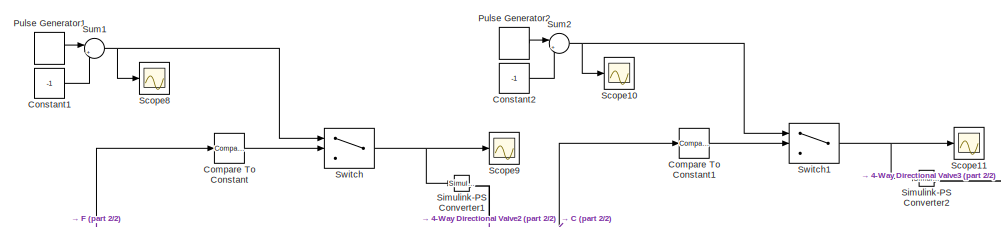
[diagram: root canvas - part 1/2, top center region]
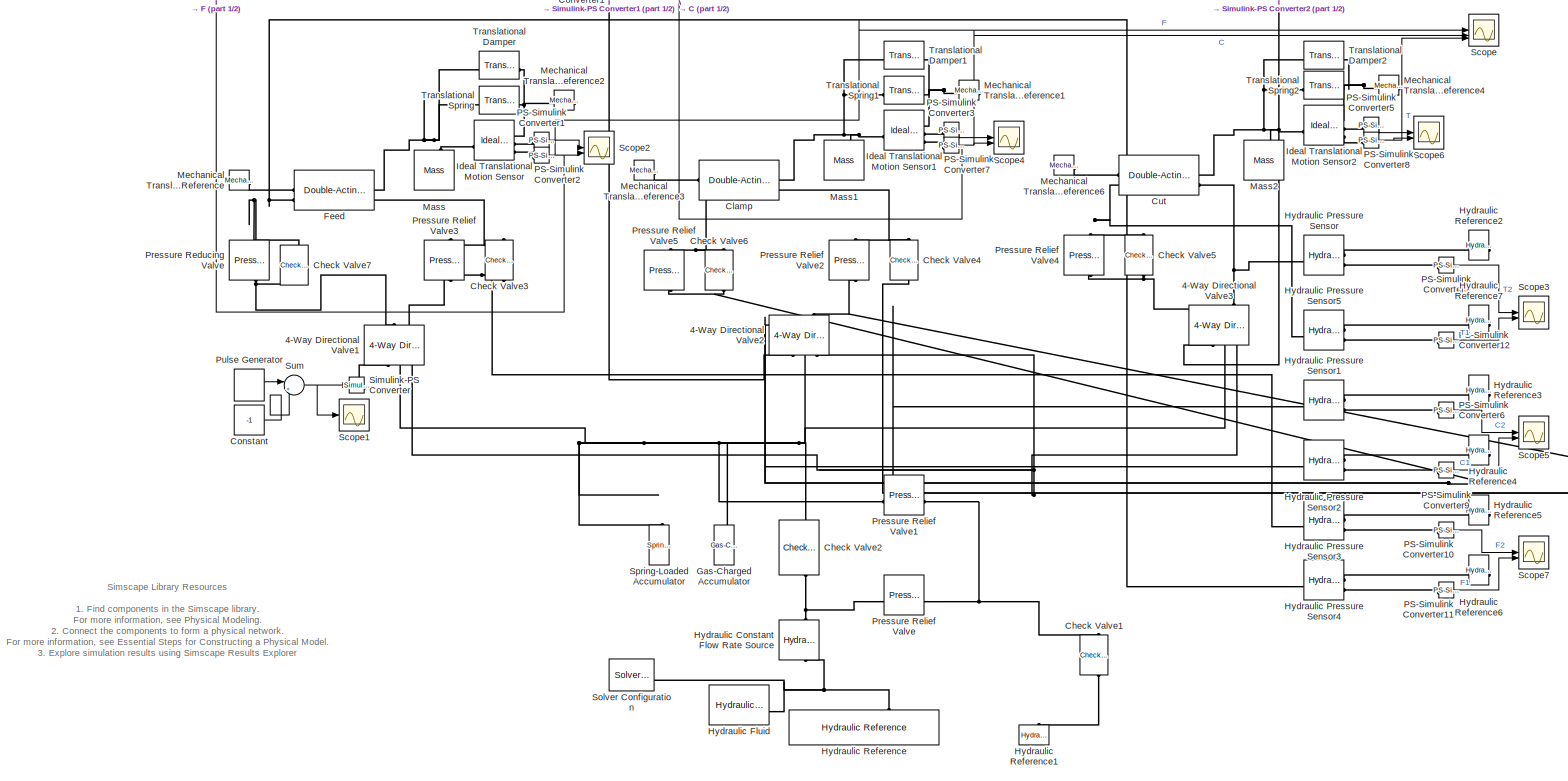
[diagram: root canvas - part 2/2, most of the canvas]
MODEL slx_5e64dc3f774f
KIND model
CONFIG AbsTol = 1e-3
CONFIG EnableMultiTasking = off
CONFIG FixedStep = auto
CONFIG MaxStep = auto
CONFIG MinStep = auto
CONFIG RelTol = 1e-3
CONFIG SampleTimeConstraint = Unconstrained
CONFIG SolverName = VariableStepAuto
CONFIG StartTime = 0.0
CONFIG StopTime = 120
BLOCK [Reference] 4-Way Directional Valve1  REF=sh_lib/Valves/Directional Valves/4-Way Directional
Valve
  NameLocation = right
  SourceBlock = sh_lib/Valves/Directional Valves/4-Way Directional\nValve
  SourceType = 4-Way Directional\nValve
BLOCK [Reference] 4-Way Directional Valve2  REF=sh_lib/Valves/Directional Valves/4-Way Directional
Valve
  NameLocation = right
  SourceBlock = sh_lib/Valves/Directional Valves/4-Way Directional\nValve
  SourceType = 4-Way Directional\nValve
BLOCK [Reference] 4-Way Directional Valve3  REF=sh_lib/Valves/Directional Valves/4-Way Directional
Valve
  NameLocation = right
  SourceBlock = sh_lib/Valves/Directional Valves/4-Way Directional\nValve
  SourceType = 4-Way Directional\nValve
BLOCK [Reference] Check Valve1  REF=sh_lib/Valves/Directional Valves/Check Valve
  NameLocation = left
  SourceBlock = sh_lib/Valves/Directional Valves/Check Valve
  SourceType = Check Valve
BLOCK [Reference] Check Valve2  REF=sh_lib/Valves/Directional Valves/Check Valve
  NameLocation = right
  SourceBlock = sh_lib/Valves/Directional Valves/Check Valve
  SourceType = Check Valve
BLOCK [Reference] Check Valve3  REF=sh_lib/Valves/Directional Valves/Check Valve
  NameLocation = left
  SourceBlock = sh_lib/Valves/Directional Valves/Check Valve
  SourceType = Check Valve
BLOCK [Reference] Check Valve4  REF=sh_lib/Valves/Directional Valves/Check Valve
  NameLocation = left
  SourceBlock = sh_lib/Valves/Directional Valves/Check Valve
  SourceType = Check Valve
BLOCK [Reference] Check Valve5  REF=sh_lib/Valves/Directional Valves/Check Valve
  NameLocation = left
  SourceBlock = sh_lib/Valves/Directional Valves/Check Valve
  SourceType = Check Valve
BLOCK [Reference] Check Valve6  REF=sh_lib/Valves/Directional Valves/Check Valve
  NameLocation = left
  SourceBlock = sh_lib/Valves/Directional Valves/Check Valve
  SourceType = Check Valve
BLOCK [Reference] Check Valve7  REF=sh_lib/Valves/Directional Valves/Check Valve
  NameLocation = left
  SourceBlock = sh_lib/Valves/Directional Valves/Check Valve
  SourceType = Check Valve
BLOCK [Reference] Clamp  REF=sh_lib/Hydraulic Cylinders/Double-Acting
Hydraulic Cylinder
  SourceBlock = sh_lib/Hydraulic Cylinders/Double-Acting\nHydraulic Cylinder
  SourceType = Double-Acting\nHydraulic Cylinder
BLOCK [Reference] Compare To Constant  REF=simulink/Logic and Bit
Operations/Compare
To Constant
  SourceBlock = simulink/Logic and Bit\nOperations/Compare\nTo Constant
  SourceType = Compare To Constant
BLOCK [Reference] Compare To Constant1  REF=simulink/Logic and Bit
Operations/Compare
To Constant
  SourceBlock = simulink/Logic and Bit\nOperations/Compare\nTo Constant
  SourceType = Compare To Constant
BLOCK [Constant] Constant
  Value = -1
BLOCK [Constant] Constant1
  Value = -1
BLOCK [Constant] Constant2
  Value = -1
BLOCK [Reference] Cut  REF=sh_lib/Hydraulic Cylinders/Double-Acting
Hydraulic Cylinder
  SourceBlock = sh_lib/Hydraulic Cylinders/Double-Acting\nHydraulic Cylinder
  SourceType = Double-Acting\nHydraulic Cylinder
BLOCK [Reference] Feed  REF=sh_lib/Hydraulic Cylinders/Double-Acting
Hydraulic Cylinder
  SourceBlock = sh_lib/Hydraulic Cylinders/Double-Acting\nHydraulic Cylinder
  SourceType = Double-Acting\nHydraulic Cylinder
BLOCK [Reference] Gas-Charged Accumulator  REF=sh_lib/Accumulators/Gas-Charged
Accumulator
  Commented = on
  NameLocation = left
  SourceBlock = sh_lib/Accumulators/Gas-Charged\nAccumulator
  SourceType = Gas-Charged\nAccumulator
BLOCK [Reference] Hydraulic Constant Flow Rate Source  REF=fl_lib/Hydraulic/Hydraulic Sources/Hydraulic Constant
Flow Rate Source
  NameLocation = right
  SourceBlock = fl_lib/Hydraulic/Hydraulic Sources/Hydraulic Constant\nFlow Rate Source
  SourceType = Hydraulic Constant\nFlow Rate Source
BLOCK [Reference] Hydraulic Fluid  REF=sh_lib/Hydraulic Utilities/Hydraulic Fluid
  SourceBlock = sh_lib/Hydraulic Utilities/Hydraulic Fluid
  SourceType = Hydraulic Fluid
BLOCK [Reference] Hydraulic Pressure Sensor  REF=fl_lib/Hydraulic/Hydraulic Sensors/Hydraulic Pressure
Sensor
  SourceBlock = fl_lib/Hydraulic/Hydraulic Sensors/Hydraulic Pressure\nSensor
  SourceType = Hydraulic Pressure\nSensor
BLOCK [Reference] Hydraulic Pressure Sensor1  REF=fl_lib/Hydraulic/Hydraulic Sensors/Hydraulic Pressure
Sensor
  SourceBlock = fl_lib/Hydraulic/Hydraulic Sensors/Hydraulic Pressure\nSensor
  SourceType = Hydraulic Pressure\nSensor
BLOCK [Reference] Hydraulic Pressure Sensor2  REF=fl_lib/Hydraulic/Hydraulic Sensors/Hydraulic Pressure
Sensor
  SourceBlock = fl_lib/Hydraulic/Hydraulic Sensors/Hydraulic Pressure\nSensor
  SourceType = Hydraulic Pressure\nSensor
BLOCK [Reference] Hydraulic Pressure Sensor3  REF=fl_lib/Hydraulic/Hydraulic Sensors/Hydraulic Pressure
Sensor
  SourceBlock = fl_lib/Hydraulic/Hydraulic Sensors/Hydraulic Pressure\nSensor
  SourceType = Hydraulic Pressure\nSensor
BLOCK [Reference] Hydraulic Pressure Sensor4  REF=fl_lib/Hydraulic/Hydraulic Sensors/Hydraulic Pressure
Sensor
  SourceBlock = fl_lib/Hydraulic/Hydraulic Sensors/Hydraulic Pressure\nSensor
  SourceType = Hydraulic Pressure\nSensor
BLOCK [Reference] Hydraulic Pressure Sensor5  REF=fl_lib/Hydraulic/Hydraulic Sensors/Hydraulic Pressure
Sensor
  SourceBlock = fl_lib/Hydraulic/Hydraulic Sensors/Hydraulic Pressure\nSensor
  SourceType = Hydraulic Pressure\nSensor
BLOCK [Reference] Hydraulic Reference  REF=fl_lib/Hydraulic/Hydraulic Elements/Hydraulic Reference
  NameLocation = right
  SourceBlock = fl_lib/Hydraulic/Hydraulic Elements/Hydraulic Reference
  SourceType = Hydraulic Reference
BLOCK [Reference] Hydraulic Reference1  REF=fl_lib/Hydraulic/Hydraulic Elements/Hydraulic Reference
  NameLocation = right
  SourceBlock = fl_lib/Hydraulic/Hydraulic Elements/Hydraulic Reference
  SourceType = Hydraulic Reference
BLOCK [Reference] Hydraulic Reference2  REF=fl_lib/Hydraulic/Hydraulic Elements/Hydraulic Reference
  NameLocation = top
  SourceBlock = fl_lib/Hydraulic/Hydraulic Elements/Hydraulic Reference
  SourceType = Hydraulic Reference
BLOCK [Reference] Hydraulic Reference3  REF=fl_lib/Hydraulic/Hydraulic Elements/Hydraulic Reference
  NameLocation = top
  SourceBlock = fl_lib/Hydraulic/Hydraulic Elements/Hydraulic Reference
  SourceType = Hydraulic Reference
BLOCK [Reference] Hydraulic Reference4  REF=fl_lib/Hydraulic/Hydraulic Elements/Hydraulic Reference
  NameLocation = top
  SourceBlock = fl_lib/Hydraulic/Hydraulic Elements/Hydraulic Reference
  SourceType = Hydraulic Reference
BLOCK [Reference] Hydraulic Reference5  REF=fl_lib/Hydraulic/Hydraulic Elements/Hydraulic Reference
  NameLocation = top
  SourceBlock = fl_lib/Hydraulic/Hydraulic Elements/Hydraulic Reference
  SourceType = Hydraulic Reference
BLOCK [Reference] Hydraulic Reference6  REF=fl_lib/Hydraulic/Hydraulic Elements/Hydraulic Reference
  NameLocation = top
  SourceBlock = fl_lib/Hydraulic/Hydraulic Elements/Hydraulic Reference
  SourceType = Hydraulic Reference
BLOCK [Reference] Hydraulic Reference7  REF=fl_lib/Hydraulic/Hydraulic Elements/Hydraulic Reference
  NameLocation = top
  SourceBlock = fl_lib/Hydraulic/Hydraulic Elements/Hydraulic Reference
  SourceType = Hydraulic Reference
BLOCK [Reference] Ideal Translational Motion Sensor  REF=fl_lib/Mechanical/Mechanical Sensors/Ideal Translational
Motion Sensor
  SourceBlock = fl_lib/Mechanical/Mechanical Sensors/Ideal Translational\nMotion Sensor
  SourceType = Ideal Translational\nMotion Sensor
BLOCK [Reference] Ideal Translational Motion Sensor1  REF=fl_lib/Mechanical/Mechanical Sensors/Ideal Translational
Motion Sensor
  SourceBlock = fl_lib/Mechanical/Mechanical Sensors/Ideal Translational\nMotion Sensor
  SourceType = Ideal Translational\nMotion Sensor
BLOCK [Reference] Ideal Translational Motion Sensor2  REF=fl_lib/Mechanical/Mechanical Sensors/Ideal Translational
Motion Sensor
  SourceBlock = fl_lib/Mechanical/Mechanical Sensors/Ideal Translational\nMotion Sensor
  SourceType = Ideal Translational\nMotion Sensor
BLOCK [Reference] Mass  REF=fl_lib/Mechanical/Translational
Elements/Mass
  NameLocation = right
  SourceBlock = fl_lib/Mechanical/Translational\nElements/Mass
  SourceType = Mass
BLOCK [Reference] Mass1  REF=fl_lib/Mechanical/Translational
Elements/Mass
  NameLocation = right
  SourceBlock = fl_lib/Mechanical/Translational\nElements/Mass
  SourceType = Mass
BLOCK [Reference] Mass2  REF=fl_lib/Mechanical/Translational
Elements/Mass
  NameLocation = right
  SourceBlock = fl_lib/Mechanical/Translational\nElements/Mass
  SourceType = Mass
BLOCK [Reference] Mechanical Translational Reference  REF=fl_lib/Mechanical/Translational
Elements/Mechanical
Translational
Reference
  SourceBlock = fl_lib/Mechanical/Translational\nElements/Mechanical\nTranslational\nReference
  SourceType = Mechanical\nTranslational\nReference
BLOCK [Reference] Mechanical Translational Reference1  REF=fl_lib/Mechanical/Translational
Elements/Mechanical
Translational
Reference
  NameLocation = top
  SourceBlock = fl_lib/Mechanical/Translational\nElements/Mechanical\nTranslational\nReference
  SourceType = Mechanical\nTranslational\nReference
BLOCK [Reference] Mechanical Translational Reference2  REF=fl_lib/Mechanical/Translational
Elements/Mechanical
Translational
Reference
  NameLocation = top
  SourceBlock = fl_lib/Mechanical/Translational\nElements/Mechanical\nTranslational\nReference
  SourceType = Mechanical\nTranslational\nReference
BLOCK [Reference] Mechanical Translational Reference3  REF=fl_lib/Mechanical/Translational
Elements/Mechanical
Translational
Reference
  SourceBlock = fl_lib/Mechanical/Translational\nElements/Mechanical\nTranslational\nReference
  SourceType = Mechanical\nTranslational\nReference
BLOCK [Reference] Mechanical Translational Reference4  REF=fl_lib/Mechanical/Translational
Elements/Mechanical
Translational
Reference
  NameLocation = top
  SourceBlock = fl_lib/Mechanical/Translational\nElements/Mechanical\nTranslational\nReference
  SourceType = Mechanical\nTranslational\nReference
BLOCK [Reference] Mechanical Translational Reference6  REF=fl_lib/Mechanical/Translational
Elements/Mechanical
Translational
Reference
  SourceBlock = fl_lib/Mechanical/Translational\nElements/Mechanical\nTranslational\nReference
  SourceType = Mechanical\nTranslational\nReference
BLOCK [Reference] PS-Simulink Converter1  REF=nesl_utility/PS-Simulink
Converter
  SourceBlock = nesl_utility/PS-Simulink\nConverter
  SourceType = PS-Simulink\nConverter
BLOCK [Reference] PS-Simulink Converter10  REF=nesl_utility/PS-Simulink
Converter
  SourceBlock = nesl_utility/PS-Simulink\nConverter
  SourceType = PS-Simulink\nConverter
BLOCK [Reference] PS-Simulink Converter11  REF=nesl_utility/PS-Simulink
Converter
  SourceBlock = nesl_utility/PS-Simulink\nConverter
  SourceType = PS-Simulink\nConverter
BLOCK [Reference] PS-Simulink Converter12  REF=nesl_utility/PS-Simulink
Converter
  SourceBlock = nesl_utility/PS-Simulink\nConverter
  SourceType = PS-Simulink\nConverter
BLOCK [Reference] PS-Simulink Converter2  REF=nesl_utility/PS-Simulink
Converter
  SourceBlock = nesl_utility/PS-Simulink\nConverter
  SourceType = PS-Simulink\nConverter
BLOCK [Reference] PS-Simulink Converter3  REF=nesl_utility/PS-Simulink
Converter
  SourceBlock = nesl_utility/PS-Simulink\nConverter
  SourceType = PS-Simulink\nConverter
BLOCK [Reference] PS-Simulink Converter4  REF=nesl_utility/PS-Simulink
Converter
  SourceBlock = nesl_utility/PS-Simulink\nConverter
  SourceType = PS-Simulink\nConverter
BLOCK [Reference] PS-Simulink Converter5  REF=nesl_utility/PS-Simulink
Converter
  SourceBlock = nesl_utility/PS-Simulink\nConverter
  SourceType = PS-Simulink\nConverter
BLOCK [Reference] PS-Simulink Converter6  REF=nesl_utility/PS-Simulink
Converter
  SourceBlock = nesl_utility/PS-Simulink\nConverter
  SourceType = PS-Simulink\nConverter
BLOCK [Reference] PS-Simulink Converter7  REF=nesl_utility/PS-Simulink
Converter
  SourceBlock = nesl_utility/PS-Simulink\nConverter
  SourceType = PS-Simulink\nConverter
BLOCK [Reference] PS-Simulink Converter8  REF=nesl_utility/PS-Simulink
Converter
  SourceBlock = nesl_utility/PS-Simulink\nConverter
  SourceType = PS-Simulink\nConverter
BLOCK [Reference] PS-Simulink Converter9  REF=nesl_utility/PS-Simulink
Converter
  SourceBlock = nesl_utility/PS-Simulink\nConverter
  SourceType = PS-Simulink\nConverter
BLOCK [Reference] Pressure Reducing Valve  REF=sh_lib/Valves/Pressure Control
Valves/Pressure Reducing
Valve
  NameLocation = left
  SourceBlock = sh_lib/Valves/Pressure Control\nValves/Pressure Reducing\nValve
  SourceType = Pressure Reducing\nValve
BLOCK [Reference] Pressure Relief Valve  REF=sh_lib/Valves/Pressure Control
Valves/Pressure Relief
Valve
  NameLocation = top
  SourceBlock = sh_lib/Valves/Pressure Control\nValves/Pressure Relief\nValve
  SourceType = Pressure Relief\nValve
BLOCK [Reference] Pressure Relief Valve1  REF=sh_lib/Valves/Pressure Control
Valves/Pressure Relief
Valve
  NameLocation = top
  SourceBlock = sh_lib/Valves/Pressure Control\nValves/Pressure Relief\nValve
  SourceType = Pressure Relief\nValve
BLOCK [Reference] Pressure Relief Valve2  REF=sh_lib/Valves/Pressure Control
Valves/Pressure Relief
Valve
  NameLocation = left
  SourceBlock = sh_lib/Valves/Pressure Control\nValves/Pressure Relief\nValve
  SourceType = Pressure Relief\nValve
BLOCK [Reference] Pressure Relief Valve3  REF=sh_lib/Valves/Pressure Control
Valves/Pressure Relief
Valve
  NameLocation = left
  SourceBlock = sh_lib/Valves/Pressure Control\nValves/Pressure Relief\nValve
  SourceType = Pressure Relief\nValve
BLOCK [Reference] Pressure Relief Valve4  REF=sh_lib/Valves/Pressure Control
Valves/Pressure Relief
Valve
  NameLocation = left
  SourceBlock = sh_lib/Valves/Pressure Control\nValves/Pressure Relief\nValve
  SourceType = Pressure Relief\nValve
BLOCK [Reference] Pressure Relief Valve5  REF=sh_lib/Valves/Pressure Control
Valves/Pressure Relief
Valve
  NameLocation = left
  SourceBlock = sh_lib/Valves/Pressure Control\nValves/Pressure Relief\nValve
  SourceType = Pressure Relief\nValve
BLOCK [DiscretePulseGenerator] Pulse Generator
  Amplitude = 2
  Period = 15+30
  PhaseDelay = 1
  PulseType = Time based
  PulseWidth = 50
BLOCK [DiscretePulseGenerator] Pulse Generator1
  Amplitude = 2
  Period = 14+30
  PhaseDelay = 1
  PulseType = Time based
  PulseWidth = 50
BLOCK [DiscretePulseGenerator] Pulse Generator2
  Amplitude = 2
  Period = 12.5+30
  PhaseDelay = 1
  PulseType = Time based
  PulseWidth = 50
BLOCK [Scope] Scope
  Floating = off
  NumInputPorts = 3
  ScopeSpecificationString = Simulink.scopes.TimeScopeBlockCfg('CurrentConfiguration', extmgr.ConfigurationSet(extmgr.Configuration('Core','General UI',true),extmgr.Configuration('Core','Source UI',true),extmgr.Configuration('Sources','WiredSimulink',true,'DataLoggingVariableName','ScopeData1'),extmgr.Configuration('Visuals','Time Domain',true,'SerializedDisplays',{struct('MinYLimReal','-0.03266','MaxYLimReal','0.28176','YLab...<+1869ch>
BLOCK [Scope] Scope1
  Floating = off
  NumInputPorts = 1
  ScopeSpecificationString = Simulink.scopes.TimeScopeBlockCfg('CurrentConfiguration', extmgr.ConfigurationSet(extmgr.Configuration('Core','General UI',true),extmgr.Configuration('Core','Source UI',true),extmgr.Configuration('Sources','WiredSimulink',true,'DataLoggingVariableName','ScopeData1'),extmgr.Configuration('Visuals','Time Domain',true,'SerializedDisplays',{struct('MinYLimReal','-1.25','MaxYLimReal','1.25','YLabelReal...<+1433ch>
BLOCK [Scope] Scope10
  Floating = off
  NumInputPorts = 1
  ScopeSpecificationString = Simulink.scopes.TimeScopeBlockCfg('CurrentConfiguration', extmgr.ConfigurationSet(extmgr.Configuration('Core','General UI',true),extmgr.Configuration('Core','Source UI',true),extmgr.Configuration('Sources','WiredSimulink',true,'DataLoggingVariableName','ScopeData3'),extmgr.Configuration('Visuals','Time Domain',true,'SerializedDisplays',{struct('MinYLimReal','-1.25','MaxYLimReal','1.25','YLabelReal...<+1345ch>
BLOCK [Scope] Scope11
  Floating = off
  NumInputPorts = 1
  ScopeSpecificationString = Simulink.scopes.TimeScopeBlockCfg('CurrentConfiguration', extmgr.ConfigurationSet(extmgr.Configuration('Core','General UI',true),extmgr.Configuration('Core','Source UI',true),extmgr.Configuration('Sources','WiredSimulink',true,'DataLoggingVariableName','ScopeData4'),extmgr.Configuration('Visuals','Time Domain',true,'SerializedDisplays',{struct('MinYLimReal','-1.25','MaxYLimReal','1.25','YLabelReal...<+1348ch>
BLOCK [Scope] Scope2
  Floating = off
  NumInputPorts = 2
  ScopeSpecificationString = Simulink.scopes.TimeScopeBlockCfg('CurrentConfiguration', extmgr.ConfigurationSet(extmgr.Configuration('Core','General UI',true),extmgr.Configuration('Core','Source UI',true),extmgr.Configuration('Sources','WiredSimulink',true,'DataLoggingVariableName','ScopeData2'),extmgr.Configuration('Visuals','Time Domain',true,'SerializedDisplays',{struct('MinYLimReal','-0.36256','MaxYLimReal','0.26289','YLab...<+1761ch>
BLOCK [Scope] Scope3
  Floating = off
  NumInputPorts = 2
  ScopeSpecificationString = Simulink.scopes.TimeScopeBlockCfg('CurrentConfiguration', extmgr.ConfigurationSet(extmgr.Configuration('Core','General UI',true),extmgr.Configuration('Core','Source UI',true),extmgr.Configuration('Sources','WiredSimulink',true,'DataLoggingVariableName','ScopeData1'),extmgr.Configuration('Visuals','Time Domain',true,'SerializedDisplays',{struct('MinYLimReal','-208585.52863','MaxYLimReal','1136720.9...<+1856ch>
BLOCK [Scope] Scope4
  Floating = off
  NumInputPorts = 2
  ScopeSpecificationString = Simulink.scopes.TimeScopeBlockCfg('CurrentConfiguration', extmgr.ConfigurationSet(extmgr.Configuration('Core','General UI',true),extmgr.Configuration('Core','Source UI',true),extmgr.Configuration('Sources','WiredSimulink',true,'DataLoggingVariableName','ScopeData3'),extmgr.Configuration('Visuals','Time Domain',true,'SerializedDisplays',{struct('MinYLimReal','-0.37862','MaxYLimReal','0.3992','YLabe...<+1770ch>
BLOCK [Scope] Scope5
  Floating = off
  NumInputPorts = 2
  ScopeSpecificationString = Simulink.scopes.TimeScopeBlockCfg('CurrentConfiguration', extmgr.ConfigurationSet(extmgr.Configuration('Core','General UI',true),extmgr.Configuration('Core','Source UI',true),extmgr.Configuration('Sources','WiredSimulink',true,'DataLoggingVariableName','ScopeData2'),extmgr.Configuration('Visuals','Time Domain',true,'SerializedDisplays',{struct('MinYLimReal','-125153.93816','MaxYLimReal','1126385.4...<+1777ch>
BLOCK [Scope] Scope6
  Floating = off
  NumInputPorts = 2
  ScopeSpecificationString = Simulink.scopes.TimeScopeBlockCfg('CurrentConfiguration', extmgr.ConfigurationSet(extmgr.Configuration('Core','General UI',true),extmgr.Configuration('Core','Source UI',true),extmgr.Configuration('Sources','WiredSimulink',true,'DataLoggingVariableName','ScopeData5'),extmgr.Configuration('Visuals','Time Domain',true,'SerializedDisplays',{struct('MinYLimReal','-0.57533','MaxYLimReal','0.38044','YLab...<+1834ch>
BLOCK [Scope] Scope7
  Floating = off
  NumInputPorts = 2
  ScopeSpecificationString = Simulink.scopes.TimeScopeBlockCfg('CurrentConfiguration', extmgr.ConfigurationSet(extmgr.Configuration('Core','General UI',true),extmgr.Configuration('Core','Source UI',true),extmgr.Configuration('Sources','WiredSimulink',true,'DataLoggingVariableName','ScopeData3'),extmgr.Configuration('Visuals','Time Domain',true,'SerializedDisplays',{struct('MinYLimReal','-125147.98911','MaxYLimReal','1126331.9...<+1855ch>
BLOCK [Scope] Scope8
  Floating = off
  NumInputPorts = 1
  ScopeSpecificationString = Simulink.scopes.TimeScopeBlockCfg('CurrentConfiguration', extmgr.ConfigurationSet(extmgr.Configuration('Core','General UI',true),extmgr.Configuration('Core','Source UI',true),extmgr.Configuration('Sources','WiredSimulink',true,'DataLoggingVariableName','ScopeData1'),extmgr.Configuration('Visuals','Time Domain',true,'SerializedDisplays',{struct('MinYLimReal','-1.25','MaxYLimReal','1.25','YLabelReal...<+1345ch>
BLOCK [Scope] Scope9
  Floating = off
  NumInputPorts = 1
  ScopeSpecificationString = Simulink.scopes.TimeScopeBlockCfg('CurrentConfiguration', extmgr.ConfigurationSet(extmgr.Configuration('Core','General UI',true),extmgr.Configuration('Core','Source UI',true),extmgr.Configuration('Sources','WiredSimulink',true,'DataLoggingVariableName','ScopeData2'),extmgr.Configuration('Visuals','Time Domain',true,'SerializedDisplays',{struct('MinYLimReal','-1.25','MaxYLimReal','1.25','YLabelReal...<+1347ch>
BLOCK [Reference] Simulink-PS Converter  REF=nesl_utility/Simulink-PS
Converter
  SourceBlock = nesl_utility/Simulink-PS\nConverter
  SourceType = Simulink-PS\nConverter
BLOCK [Reference] Simulink-PS Converter1  REF=nesl_utility/Simulink-PS
Converter
  SourceBlock = nesl_utility/Simulink-PS\nConverter
  SourceType = Simulink-PS\nConverter
BLOCK [Reference] Simulink-PS Converter2  REF=nesl_utility/Simulink-PS
Converter
  SourceBlock = nesl_utility/Simulink-PS\nConverter
  SourceType = Simulink-PS\nConverter
BLOCK [Reference] Solver Configuration  REF=nesl_utility/Solver
Configuration
  SourceBlock = nesl_utility/Solver\nConfiguration
  SourceType = Solver\nConfiguration
BLOCK [Reference] Spring-Loaded Accumulator  REF=sh_lib/Accumulators/Spring-Loaded
Accumulator
  NameLocation = left
  SourceBlock = sh_lib/Accumulators/Spring-Loaded\nAccumulator
  SourceType = Spring-Loaded\nAccumulator
BLOCK [Sum] Sum
  Inputs = |++
BLOCK [Sum] Sum1
  Inputs = |++
BLOCK [Sum] Sum2
  Inputs = |++
BLOCK [Switch] Switch
  Criteria = u2 > Threshold
  InputSameDT = off
  SaturateOnIntegerOverflow = off
  Threshold = 0.5
BLOCK [Switch] Switch1
  Criteria = u2 > Threshold
  InputSameDT = off
  SaturateOnIntegerOverflow = off
  Threshold = 0.5
BLOCK [Reference] Translational Damper  REF=sdl_lib/Couplings & Drives/Springs & Dampers/Translational Damper
  SourceBlock = sdl_lib/Couplings & Drives/Springs & Dampers/Translational Damper
  SourceType = Translational Damper
BLOCK [Reference] Translational Damper1  REF=sdl_lib/Couplings & Drives/Springs & Dampers/Translational Damper
  SourceBlock = sdl_lib/Couplings & Drives/Springs & Dampers/Translational Damper
  SourceType = Translational Damper
BLOCK [Reference] Translational Damper2  REF=sdl_lib/Couplings & Drives/Springs & Dampers/Translational Damper
  SourceBlock = sdl_lib/Couplings & Drives/Springs & Dampers/Translational Damper
  SourceType = Translational Damper
BLOCK [Reference] Translational Spring  REF=fl_lib/Mechanical/Translational
Elements/Translational Spring
  Commented = on
  SourceBlock = fl_lib/Mechanical/Translational\nElements/Translational Spring
  SourceType = Translational Spring
BLOCK [Reference] Translational Spring1  REF=fl_lib/Mechanical/Translational
Elements/Translational Spring
  Commented = on
  SourceBlock = fl_lib/Mechanical/Translational\nElements/Translational Spring
  SourceType = Translational Spring
BLOCK [Reference] Translational Spring2  REF=fl_lib/Mechanical/Translational
Elements/Translational Spring
  Commented = on
  SourceBlock = fl_lib/Mechanical/Translational\nElements/Translational Spring
  SourceType = Translational Spring
ANNOTATION (root): 1. Find components in the Simscape library . For more information, see Physical Modeling . 2. Connect the components to form a physical network. For more information, see Essential Steps for Constructing a Physical Model . 3. Explore simulation results using Simscape Results Explorer
ANNOTATION (root): Simscape Library Resources
LINE Compare To Constant1:1 -> Switch1:2
LINE Compare To Constant:1 -> Switch:2
LINE Constant1:1 -> Sum1:2
LINE Constant2:1 -> Sum2:2
LINE Constant:1 -> Sum:2
LINE PS-Simulink Converter10:1 -> Scope7:1
LINE PS-Simulink Converter11:1 -> Scope7:2
LINE PS-Simulink Converter12:1 -> Scope3:2
LINE PS-Simulink Converter1:1 -> Scope2:1
NET PS-Simulink Converter2:1 -> Compare To Constant:1, Scope2:2, Scope:1
LINE PS-Simulink Converter3:1 -> Scope4:1
LINE PS-Simulink Converter4:1 -> Scope3:1
LINE PS-Simulink Converter5:1 -> Scope6:1
LINE PS-Simulink Converter6:1 -> Scope5:1
NET PS-Simulink Converter7:1 -> Compare To Constant1:1, Scope4:2, Scope:2
NET PS-Simulink Converter8:1 -> Scope6:2, Scope:3
LINE PS-Simulink Converter9:1 -> Scope5:2
LINE Pulse Generator1:1 -> Sum1:1
LINE Pulse Generator2:1 -> Sum2:1
LINE Pulse Generator:1 -> Sum:1
NET Sum1:1 -> Scope8:1, Switch:1
NET Sum2:1 -> Scope10:1, Switch1:1
NET Sum:1 -> Scope1:1, Simulink-PS Converter:1
NET Switch1:1 -> Scope11:1, Simulink-PS Converter2:1
NET Switch:1 -> Scope9:1, Simulink-PS Converter1:1
PNET net1: 4-Way Directional Valve1:LConn1 -- Check Valve7:RConn1 -- Pressure Reducing Valve:LConn1
PNET net2: 4-Way Directional Valve1:LConn2 -- Check Valve3:RConn1 -- Hydraulic Pressure Sensor3:LConn1 -- Pressure Relief Valve3:LConn1
PLINE 4-Way Directional Valve1:RConn1 -- Simulink-PS Converter:RConn1
PNET net3: 4-Way Directional Valve1:RConn2 -- 4-Way Directional Valve2:RConn2 -- 4-Way Directional Valve3:RConn2 -- Check Valve2:RConn1 -- Gas-Charged Accumulator:RConn1 -- Pressure Relief Valve1:LConn1 -- Spring-Loaded Accumulator:RConn1
PNET net4: 4-Way Directional Valve1:RConn3 -- 4-Way Directional Valve2:RConn3 -- 4-Way Directional Valve3:RConn3 -- Check Valve1:LConn1 -- Pressure Relief Valve1:RConn1 -- Pressure Relief Valve:RConn1
PNET net5: 4-Way Directional Valve2:LConn1 -- Check Valve6:RConn1 -- Hydraulic Pressure Sensor2:LConn1 -- Pressure Relief Valve5:LConn1
PNET net6: 4-Way Directional Valve2:LConn2 -- Check Valve4:RConn1 -- Hydraulic Pressure Sensor1:LConn1 -- Pressure Relief Valve2:LConn1
PLINE 4-Way Directional Valve2:RConn1 -- Simulink-PS Converter1:RConn1
PNET net7: 4-Way Directional Valve3:LConn1 -- Check Valve5:RConn1 -- Pressure Relief Valve4:LConn1
PNET net8: 4-Way Directional Valve3:LConn2 -- Cut:RConn2 -- Hydraulic Pressure Sensor:LConn1
PLINE 4-Way Directional Valve3:RConn1 -- Simulink-PS Converter2:RConn1
PLINE Check Valve1:RConn1 -- Hydraulic Reference1:LConn1
PNET net9: Check Valve2:LConn1 -- Hydraulic Constant Flow Rate Source:LConn1 -- Pressure Relief Valve:LConn1
PNET net10: Check Valve3:LConn1 -- Feed:RConn2 -- Pressure Relief Valve3:RConn1
PNET net11: Check Valve4:LConn1 -- Clamp:RConn2 -- Pressure Relief Valve2:RConn1
PNET net12: Check Valve5:LConn1 -- Cut:LConn2 -- Hydraulic Pressure Sensor5:LConn1 -- Pressure Relief Valve4:RConn1
PNET net13: Check Valve6:LConn1 -- Clamp:LConn2 -- Pressure Relief Valve5:RConn1
PNET net14: Check Valve7:LConn1 -- Feed:LConn2 -- Hydraulic Pressure Sensor4:LConn1 -- Pressure Reducing Valve:RConn1
PLINE Clamp:LConn1 -- Mechanical Translational Reference3:LConn1
PNET net15: Clamp:RConn1 -- Ideal Translational Motion Sensor1:LConn1 -- Mass1:LConn1 -- Translational Damper1:LConn1 -- Translational Spring1:LConn1
PLINE Cut:LConn1 -- Mechanical Translational Reference6:LConn1
PNET net16: Cut:RConn1 -- Ideal Translational Motion Sensor2:LConn1 -- Mass2:LConn1 -- Translational Damper2:LConn1 -- Translational Spring2:LConn1
PLINE Feed:LConn1 -- Mechanical Translational Reference:LConn1
PNET net17: Feed:RConn1 -- Ideal Translational Motion Sensor:LConn1 -- Mass:LConn1 -- Translational Damper:LConn1 -- Translational Spring:LConn1
PNET net18: Hydraulic Constant Flow Rate Source:RConn1 -- Hydraulic Fluid:RConn1 -- Hydraulic Reference:LConn1 -- Solver Configuration:RConn1
PLINE Hydraulic Pressure Sensor1:RConn1 -- Hydraulic Reference3:LConn1
PLINE Hydraulic Pressure Sensor1:RConn2 -- PS-Simulink Converter6:LConn1
PLINE Hydraulic Pressure Sensor2:RConn1 -- Hydraulic Reference4:LConn1
PLINE Hydraulic Pressure Sensor2:RConn2 -- PS-Simulink Converter9:LConn1
PLINE Hydraulic Pressure Sensor3:RConn1 -- Hydraulic Reference5:LConn1
PLINE Hydraulic Pressure Sensor3:RConn2 -- PS-Simulink Converter10:LConn1
PLINE Hydraulic Pressure Sensor4:RConn1 -- Hydraulic Reference6:LConn1
PLINE Hydraulic Pressure Sensor4:RConn2 -- PS-Simulink Converter11:LConn1
PLINE Hydraulic Pressure Sensor5:RConn1 -- Hydraulic Reference7:LConn1
PLINE Hydraulic Pressure Sensor5:RConn2 -- PS-Simulink Converter12:LConn1
PLINE Hydraulic Pressure Sensor:RConn1 -- Hydraulic Reference2:LConn1
PLINE Hydraulic Pressure Sensor:RConn2 -- PS-Simulink Converter4:LConn1
PNET net19: Ideal Translational Motion Sensor1:RConn1 -- Mechanical Translational Reference1:LConn1 -- Translational Damper1:RConn1 -- Translational Spring1:RConn1
PLINE Ideal Translational Motion Sensor1:RConn2 -- PS-Simulink Converter3:LConn1
PLINE Ideal Translational Motion Sensor1:RConn3 -- PS-Simulink Converter7:LConn1
PNET net20: Ideal Translational Motion Sensor2:RConn1 -- Mechanical Translational Reference4:LConn1 -- Translational Damper2:RConn1 -- Translational Spring2:RConn1
PLINE Ideal Translational Motion Sensor2:RConn2 -- PS-Simulink Converter5:LConn1
PLINE Ideal Translational Motion Sensor2:RConn3 -- PS-Simulink Converter8:LConn1
PNET net21: Ideal Translational Motion Sensor:RConn1 -- Mechanical Translational Reference2:LConn1 -- Translational Damper:RConn1 -- Translational Spring:RConn1
PLINE Ideal Translational Motion Sensor:RConn2 -- PS-Simulink Converter1:LConn1
PLINE Ideal Translational Motion Sensor:RConn3 -- PS-Simulink Converter2:LConn1
note: NET lines group one-source signal fan-out (src -> all destinations, sorted); 1:1 wires keep LINE; PNET lines group multi-terminal physical nets as a canonical sorted terminal list (undirected conserving connections); 2-terminal nets keep the pairwise PLINE form
